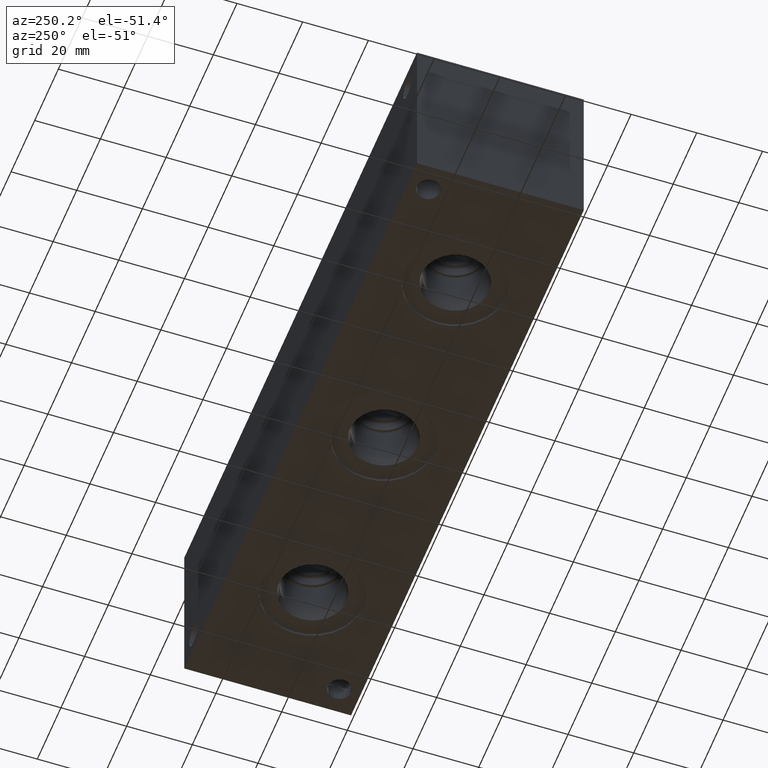
[diagram: clean part render]
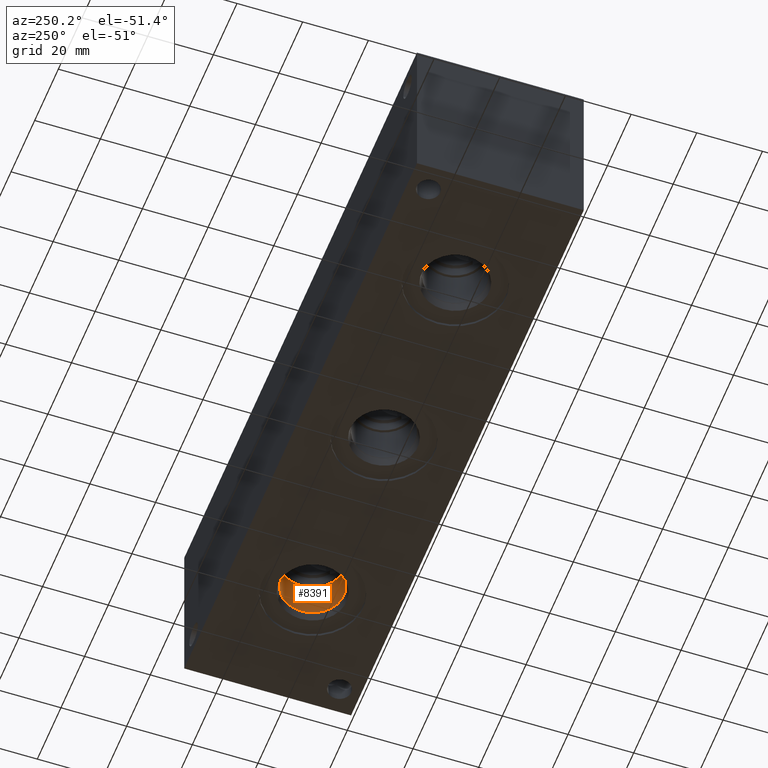
[diagram: same view with one face highlighted and labeled with its STEP entity id]
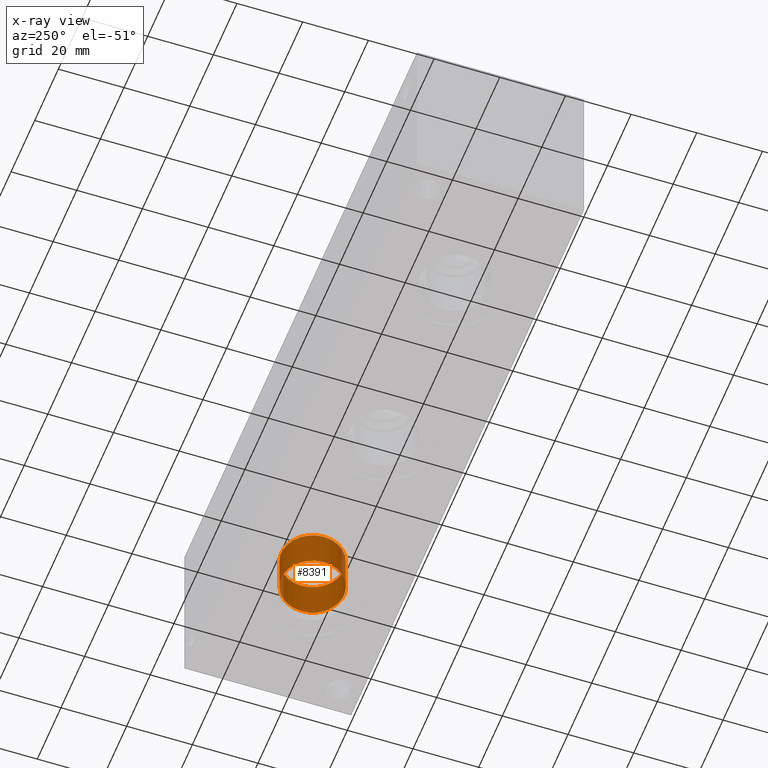
[diagram: x-ray of the same camera — body ghosted, the highlighted face saturated]
A machine part, auxiliary view. The second image highlights one B-rep face of the part: STEP entity #8391.
The next image is the same camera in x-ray: the body ghosted, the highlighted face saturated — about 0% of this face is hidden behind the body in this view.
In plain terms, the highlighted cylindrical surface (bore or boss wall) has radius 9.525 mm, axis along (0, 0, -1).
Its self-contained STEP definition (entity closure, byte-faithful):
#123=CYLINDRICAL_SURFACE('',#8891,9.525);
#255=CIRCLE('',#8862,9.525);
#272=CIRCLE('',#8889,9.525);
#273=CIRCLE('',#8890,9.525);
#1012=FACE_OUTER_BOUND('',#1493,.T.);
#1493=EDGE_LOOP('',(#7358,#7359,#7360,#7361,#7362));
#2232=LINE('',#14613,#2945);
#2945=VECTOR('',#10561,9.525);
#3948=VERTEX_POINT('',#14557);
#3965=VERTEX_POINT('',#14608);
#3966=VERTEX_POINT('',#14609);
#5096=EDGE_CURVE('',#3948,#3948,#255,.T.);
#5119=EDGE_CURVE('',#3965,#3966,#272,.T.);
#5120=EDGE_CURVE('',#3966,#3965,#273,.T.);
#5121=EDGE_CURVE('',#3948,#3966,#2232,.T.);
#7358=ORIENTED_EDGE('',*,*,#5096,.T.);
#7359=ORIENTED_EDGE('',*,*,#5121,.T.);
#7360=ORIENTED_EDGE('',*,*,#5119,.F.);
#7361=ORIENTED_EDGE('',*,*,#5120,.F.);
#7362=ORIENTED_EDGE('',*,*,#5121,.F.);
#8391=ADVANCED_FACE('',(#1012),#123,.F.);
#8862=AXIS2_PLACEMENT_3D('',#14559,#10495,#10496);
#8889=AXIS2_PLACEMENT_3D('',#14610,#10555,#10556);
#8890=AXIS2_PLACEMENT_3D('',#14611,#10557,#10558);
#8891=AXIS2_PLACEMENT_3D('',#14612,#10559,#10560);
#10495=DIRECTION('center_axis',(0.,0.,-1.));
#10496=DIRECTION('ref_axis',(1.,0.,0.));
#10555=DIRECTION('center_axis',(0.,0.,-1.));
#10556=DIRECTION('ref_axis',(1.,0.,0.));
#10557=DIRECTION('center_axis',(0.,0.,-1.));
#10558=DIRECTION('ref_axis',(1.,0.,0.));
#10559=DIRECTION('center_axis',(0.,0.,-1.));
#10560=DIRECTION('ref_axis',(1.,0.,0.));
#10561=DIRECTION('',(0.,0.,1.));
#14557=CARTESIAN_POINT('',(149.225,25.4,3.4036));
#14559=CARTESIAN_POINT('Origin',(158.75,25.4,3.4036));
#14608=CARTESIAN_POINT('',(168.275,25.4,15.0622));
#14609=CARTESIAN_POINT('',(149.225,25.4,15.0622));
#14610=CARTESIAN_POINT('Origin',(158.75,25.4,15.0622));
#14611=CARTESIAN_POINT('Origin',(158.75,25.4,15.0622));
#14612=CARTESIAN_POINT('Origin',(158.75,25.4,7.5311));
#14613=CARTESIAN_POINT('',(149.225,25.4,7.5311));